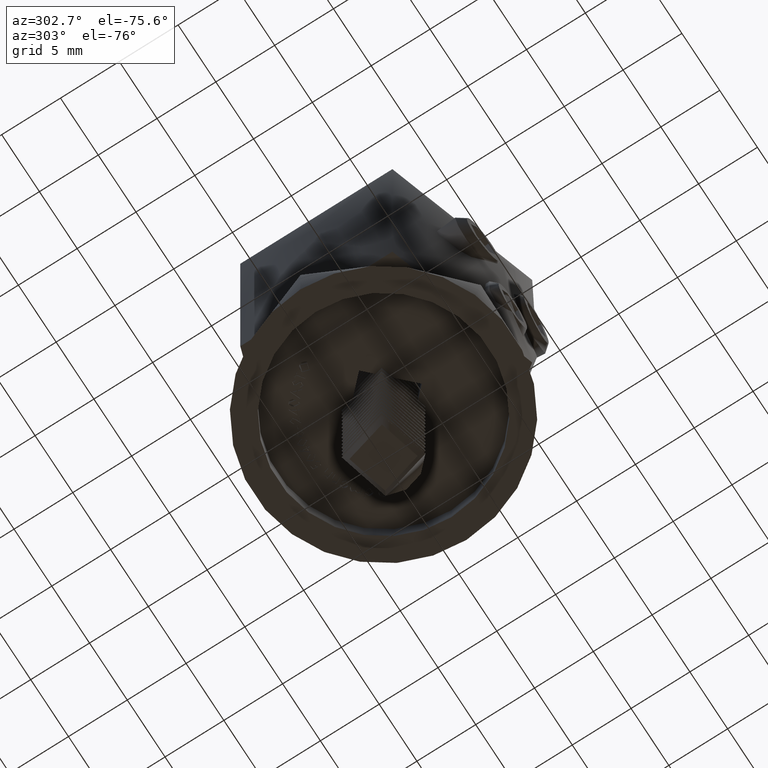
[diagram: clean part render]
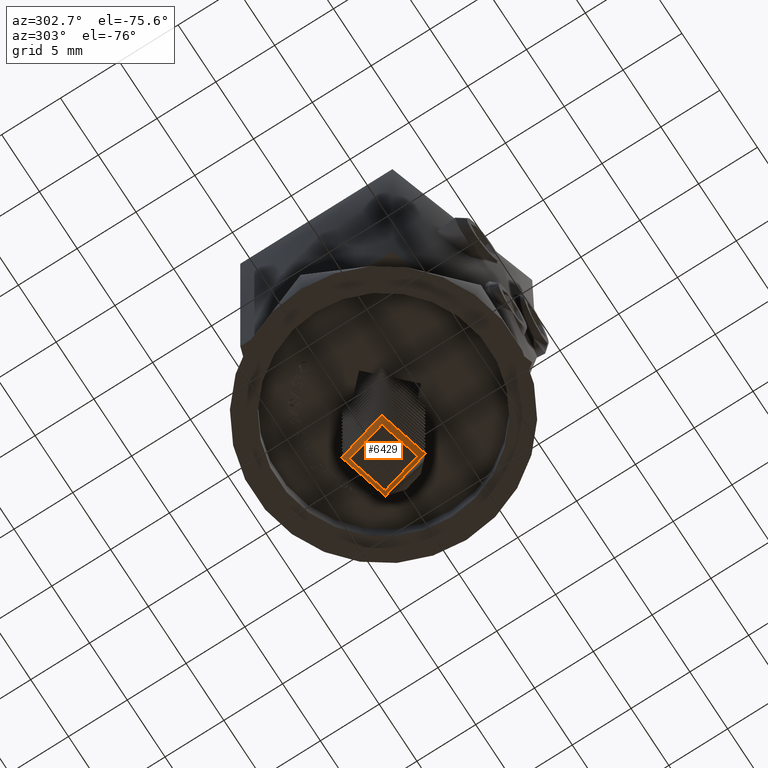
[diagram: same view with one face highlighted and labeled with its STEP entity id]
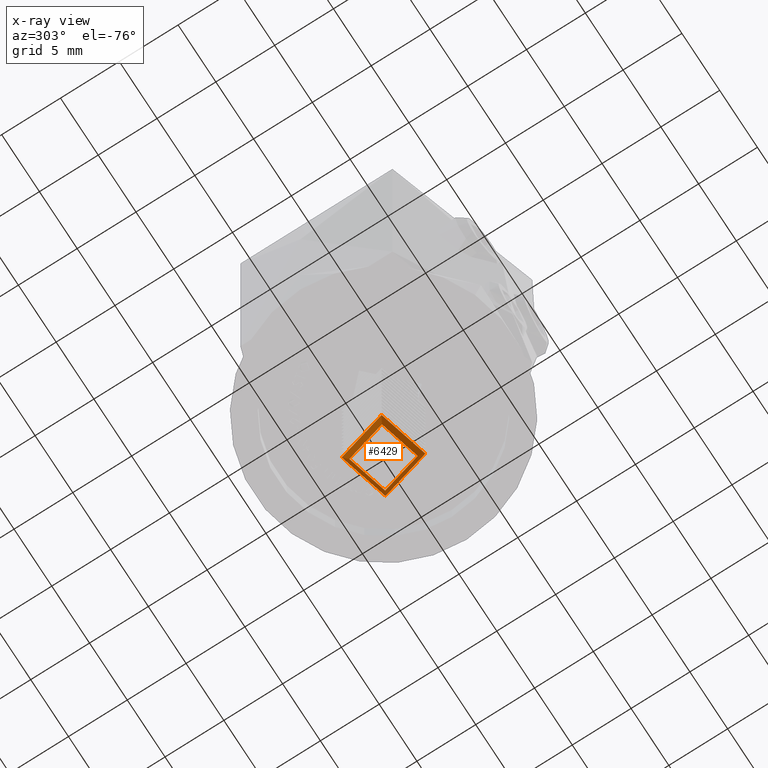
[diagram: x-ray of the same camera — body ghosted, the highlighted face saturated]
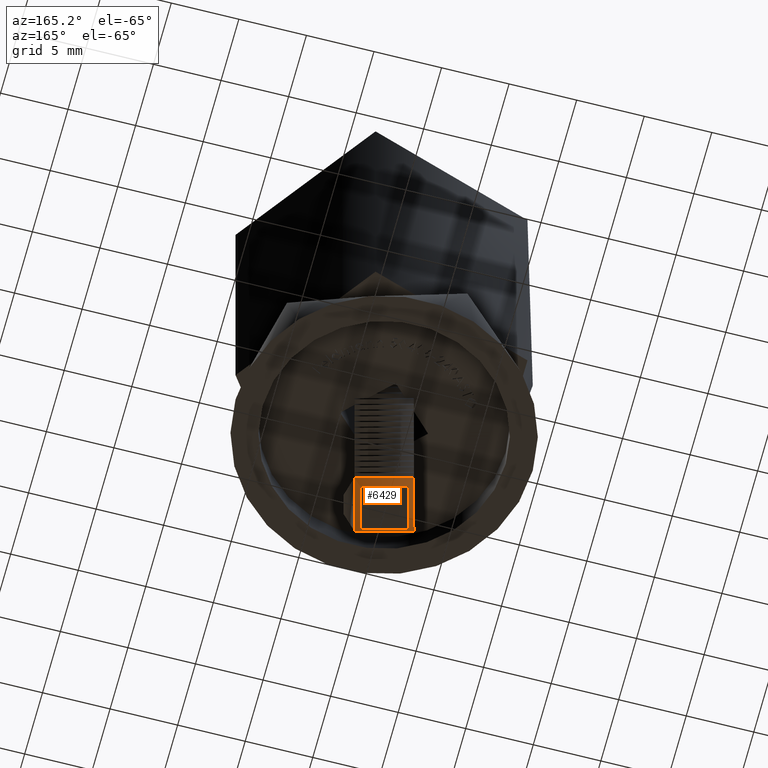
[diagram: same view with one face highlighted and labeled with its STEP entity id]
A machine part, auxiliary view. The second image highlights one B-rep face of the part: STEP entity #6429.
The next image is the same camera in x-ray: the body ghosted, the highlighted face saturated — about 0% of this face is hidden behind the body in this view.
A second angle (auxiliary view) of the same face is appended — the face is thin or edge-on in the first view.
In plain terms, the highlighted conical surface has half-angle 45 deg.
Its self-contained STEP definition (entity closure, byte-faithful):
#104 = AXIS2_PLACEMENT_3D ( 'NONE', #10266, #16585, #16494 ) ;
#1338 = CARTESIAN_POINT ( 'NONE',  ( 25.00000000000000000, 0.0000000000000000000, 0.0000000000000000000 ) ) ;
#1412 = CARTESIAN_POINT ( 'NONE',  ( 25.00000000000000000, 0.0000000000000000000, 2.445500000000000000 ) ) ;
#1716 = EDGE_CURVE ( 'NONE', #5713, #5713, #24600, .T. ) ;
#2480 = FACE_OUTER_BOUND ( 'NONE', #19101, .T. ) ;
#4701 = VERTEX_POINT ( 'NONE', #19268 ) ;
#5713 = VERTEX_POINT ( 'NONE', #1412 ) ;
#6429 = ADVANCED_FACE ( 'NONE', ( #2480, #24113 ), #13441, .T. ) ;
#6787 = ORIENTED_EDGE ( 'NONE', *, *, #24980, .F. ) ;
#7938 = DIRECTION ( 'NONE',  ( 0.0000000000000000000, 0.0000000000000000000, 1.000000000000000000 ) ) ;
#9530 = CARTESIAN_POINT ( 'NONE',  ( 25.00000000000000000, 0.0000000000000000000, 0.0000000000000000000 ) ) ;
#10266 = CARTESIAN_POINT ( 'NONE',  ( 24.44550000000003100, 0.0000000000000000000, 0.0000000000000000000 ) ) ;
#10333 = AXIS2_PLACEMENT_3D ( 'NONE', #9530, #11481, #15654 ) ;
#10463 = CIRCLE ( 'NONE', #104, 3.000000000000000900 ) ;
#10480 = EDGE_LOOP ( 'NONE', ( #15766 ) ) ;
#11481 = DIRECTION ( 'NONE',  ( -1.000000000000000000, -0.0000000000000000000, -0.0000000000000000000 ) ) ;
#13441 = CONICAL_SURFACE ( 'NONE', #10333, 2.445500000000000000, 0.7853981633974744800 ) ;
#13978 = DIRECTION ( 'NONE',  ( -1.000000000000000000, -0.0000000000000000000, -0.0000000000000000000 ) ) ;
#15654 = DIRECTION ( 'NONE',  ( 0.0000000000000000000, 0.0000000000000000000, 1.000000000000000000 ) ) ;
#15766 = ORIENTED_EDGE ( 'NONE', *, *, #1716, .T. ) ;
#16494 = DIRECTION ( 'NONE',  ( 0.0000000000000000000, 0.0000000000000000000, 1.000000000000000000 ) ) ;
#16585 = DIRECTION ( 'NONE',  ( -1.000000000000000000, -0.0000000000000000000, -0.0000000000000000000 ) ) ;
#19101 = EDGE_LOOP ( 'NONE', ( #6787 ) ) ;
#19268 = CARTESIAN_POINT ( 'NONE',  ( 24.44550000000003100, 0.0000000000000000000, 3.000000000000000900 ) ) ;
#22081 = AXIS2_PLACEMENT_3D ( 'NONE', #1338, #13978, #7938 ) ;
#24113 = FACE_BOUND ( 'NONE', #10480, .T. ) ;
#24600 = CIRCLE ( 'NONE', #22081, 2.445500000000000000 ) ;
#24980 = EDGE_CURVE ( 'NONE', #4701, #4701, #10463, .T. ) ;